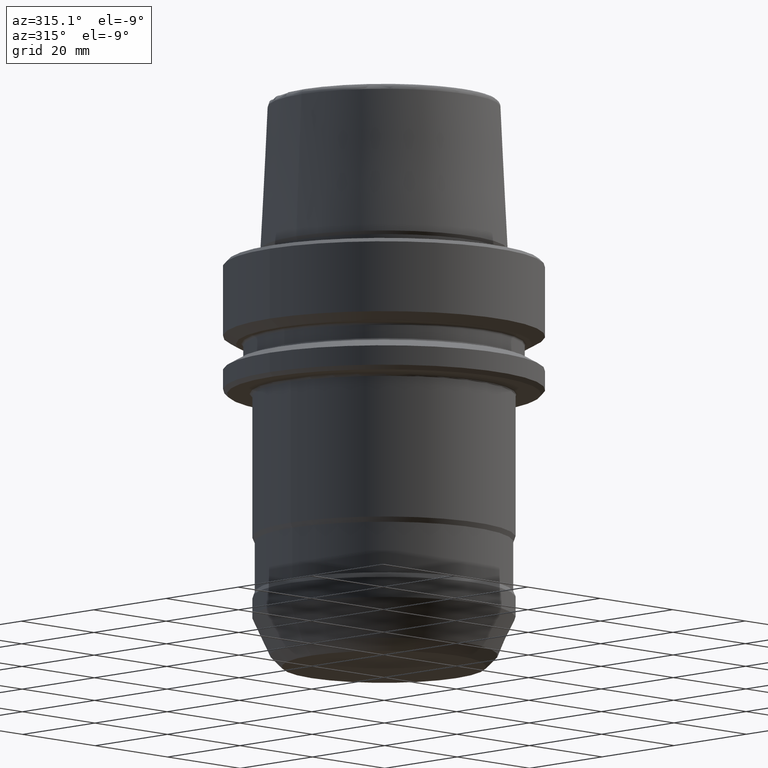
[diagram: clean part render]
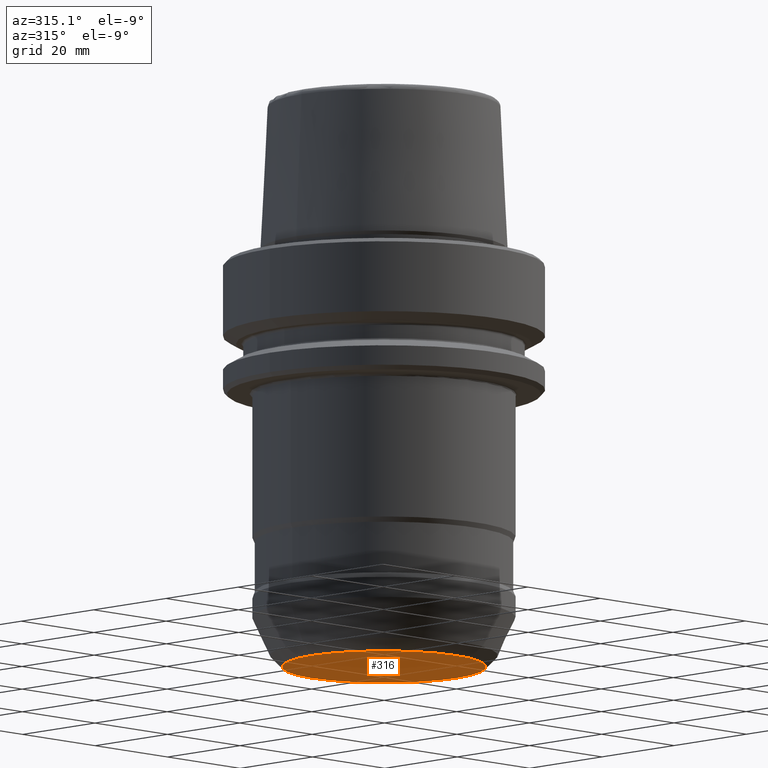
[diagram: same view with one face highlighted and labeled with its STEP entity id]
A machine part, auxiliary view. The second image highlights one B-rep face of the part: STEP entity #316.
In plain terms, the highlighted planar face has unit normal (0, 0, -1).
Its self-contained STEP definition (entity closure, byte-faithful):
#34 = PLANE ( 'NONE',  #742 ) ;
#83 = EDGE_LOOP ( 'NONE', ( #961, #850 ) ) ;
#116 = CARTESIAN_POINT ( 'NONE',  ( 0.0000000000000000000, 0.0000000000000000000, -80.00000000000007100 ) ) ;
#262 = DIRECTION ( 'NONE',  ( -0.0000000000000000000, -0.0000000000000000000, 1.000000000000000000 ) ) ;
#316 = ADVANCED_FACE ( 'NONE', ( #709 ), #34, .T. ) ;
#480 = DIRECTION ( 'NONE',  ( -1.000000000000000000, 0.0000000000000000000, -0.0000000000000000000 ) ) ;
#525 = CIRCLE ( 'NONE', #716, 20.00000000005257000 ) ;
#633 = CARTESIAN_POINT ( 'NONE',  ( -20.00000000005257000, 2.587066363205116500E-015, -80.00000000000007100 ) ) ;
#709 = FACE_OUTER_BOUND ( 'NONE', #83, .T. ) ;
#716 = AXIS2_PLACEMENT_3D ( 'NONE', #846, #262, #1229 ) ;
#742 = AXIS2_PLACEMENT_3D ( 'NONE', #897, #1131, #480 ) ;
#846 = CARTESIAN_POINT ( 'NONE',  ( 0.0000000000000000000, 0.0000000000000000000, -80.00000000000007100 ) ) ;
#850 = ORIENTED_EDGE ( 'NONE', *, *, #1067, .F. ) ;
#897 = CARTESIAN_POINT ( 'NONE',  ( 0.0000000000000000000, 0.0000000000000000000, -80.00000000000007100 ) ) ;
#922 = CIRCLE ( 'NONE', #1327, 20.00000000005257000 ) ;
#931 = EDGE_CURVE ( 'NONE', #1242, #1319, #922, .T. ) ;
#961 = ORIENTED_EDGE ( 'NONE', *, *, #931, .F. ) ;
#978 = DIRECTION ( 'NONE',  ( -0.0000000000000000000, -0.0000000000000000000, 1.000000000000000000 ) ) ;
#1067 = EDGE_CURVE ( 'NONE', #1319, #1242, #525, .T. ) ;
#1131 = DIRECTION ( 'NONE',  ( 0.0000000000000000000, 0.0000000000000000000, -1.000000000000000000 ) ) ;
#1147 = DIRECTION ( 'NONE',  ( 1.000000000000000000, 0.0000000000000000000, 0.0000000000000000000 ) ) ;
#1229 = DIRECTION ( 'NONE',  ( 1.000000000000000000, 0.0000000000000000000, 0.0000000000000000000 ) ) ;
#1242 = VERTEX_POINT ( 'NONE', #1383 ) ;
#1319 = VERTEX_POINT ( 'NONE', #633 ) ;
#1327 = AXIS2_PLACEMENT_3D ( 'NONE', #116, #978, #1147 ) ;
#1383 = CARTESIAN_POINT ( 'NONE',  ( 20.00000000005257000, 0.0000000000000000000, -80.00000000000007100 ) ) ;